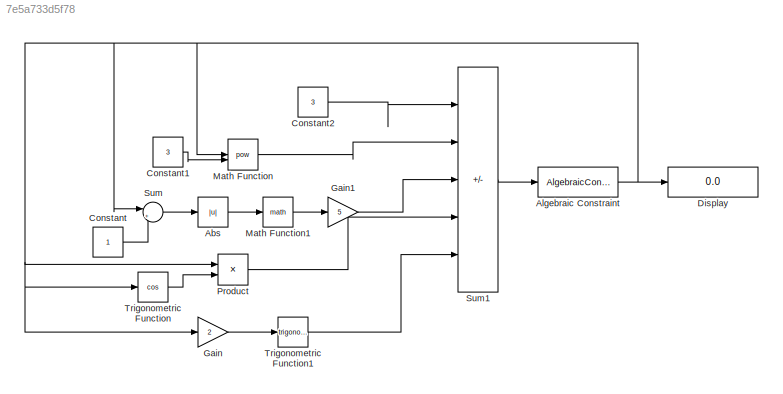
MODEL slx_7e5a733d5f78
KIND model
CONFIG AbsTol = auto
CONFIG EnableMultiTasking = off
CONFIG FixedStep = auto
CONFIG MaxStep = auto
CONFIG MinStep = auto
CONFIG RelTol = 1e-3
CONFIG SampleTimeConstraint = Unconstrained
CONFIG SolverName = VariableStepAuto
CONFIG StartTime = 0.0
CONFIG StopTime = 10.0
BLOCK [Abs] Abs
  SaturateOnIntegerOverflow = off
BLOCK [AlgebraicConstraint] Algebraic Constraint
BLOCK [Constant] Constant
BLOCK [Constant] Constant1
  Value = 3
BLOCK [Constant] Constant2
  Value = 3
BLOCK [Display] Display
  Decimation = 1
BLOCK [Gain] Gain
  Gain = 2
BLOCK [Gain] Gain1
  Gain = 5
BLOCK [Math] Math Function
  Operator = pow
BLOCK [Math] Math Function1
BLOCK [Product] Product
BLOCK [Sum] Sum
  Inputs = |+-
BLOCK [Sum] Sum1
  IconShape = rectangular
  Inputs = |--+--
BLOCK [Trigonometry] Trigonometric Function
  Operator = cos
BLOCK [Trigonometry] Trigonometric Function1
LINE Abs:1 -> Math Function1:1
NET Algebraic Constraint:1 -> Display:1, Gain:1, Math Function:1, Product:1, Sum:1, Trigonometric Function:1
LINE Constant1:1 -> Math Function:2
LINE Constant2:1 -> Sum1:1
LINE Constant:1 -> Sum:2
LINE Gain1:1 -> Sum1:3
LINE Gain:1 -> Trigonometric Function1:1
LINE Math Function1:1 -> Gain1:1
LINE Math Function:1 -> Sum1:2
LINE Product:1 -> Sum1:4
LINE Sum1:1 -> Algebraic Constraint:1
LINE Sum:1 -> Abs:1
LINE Trigonometric Function1:1 -> Sum1:5
LINE Trigonometric Function:1 -> Product:2
note: NET lines group one-source signal fan-out (src -> all destinations, sorted); 1:1 wires keep LINE
